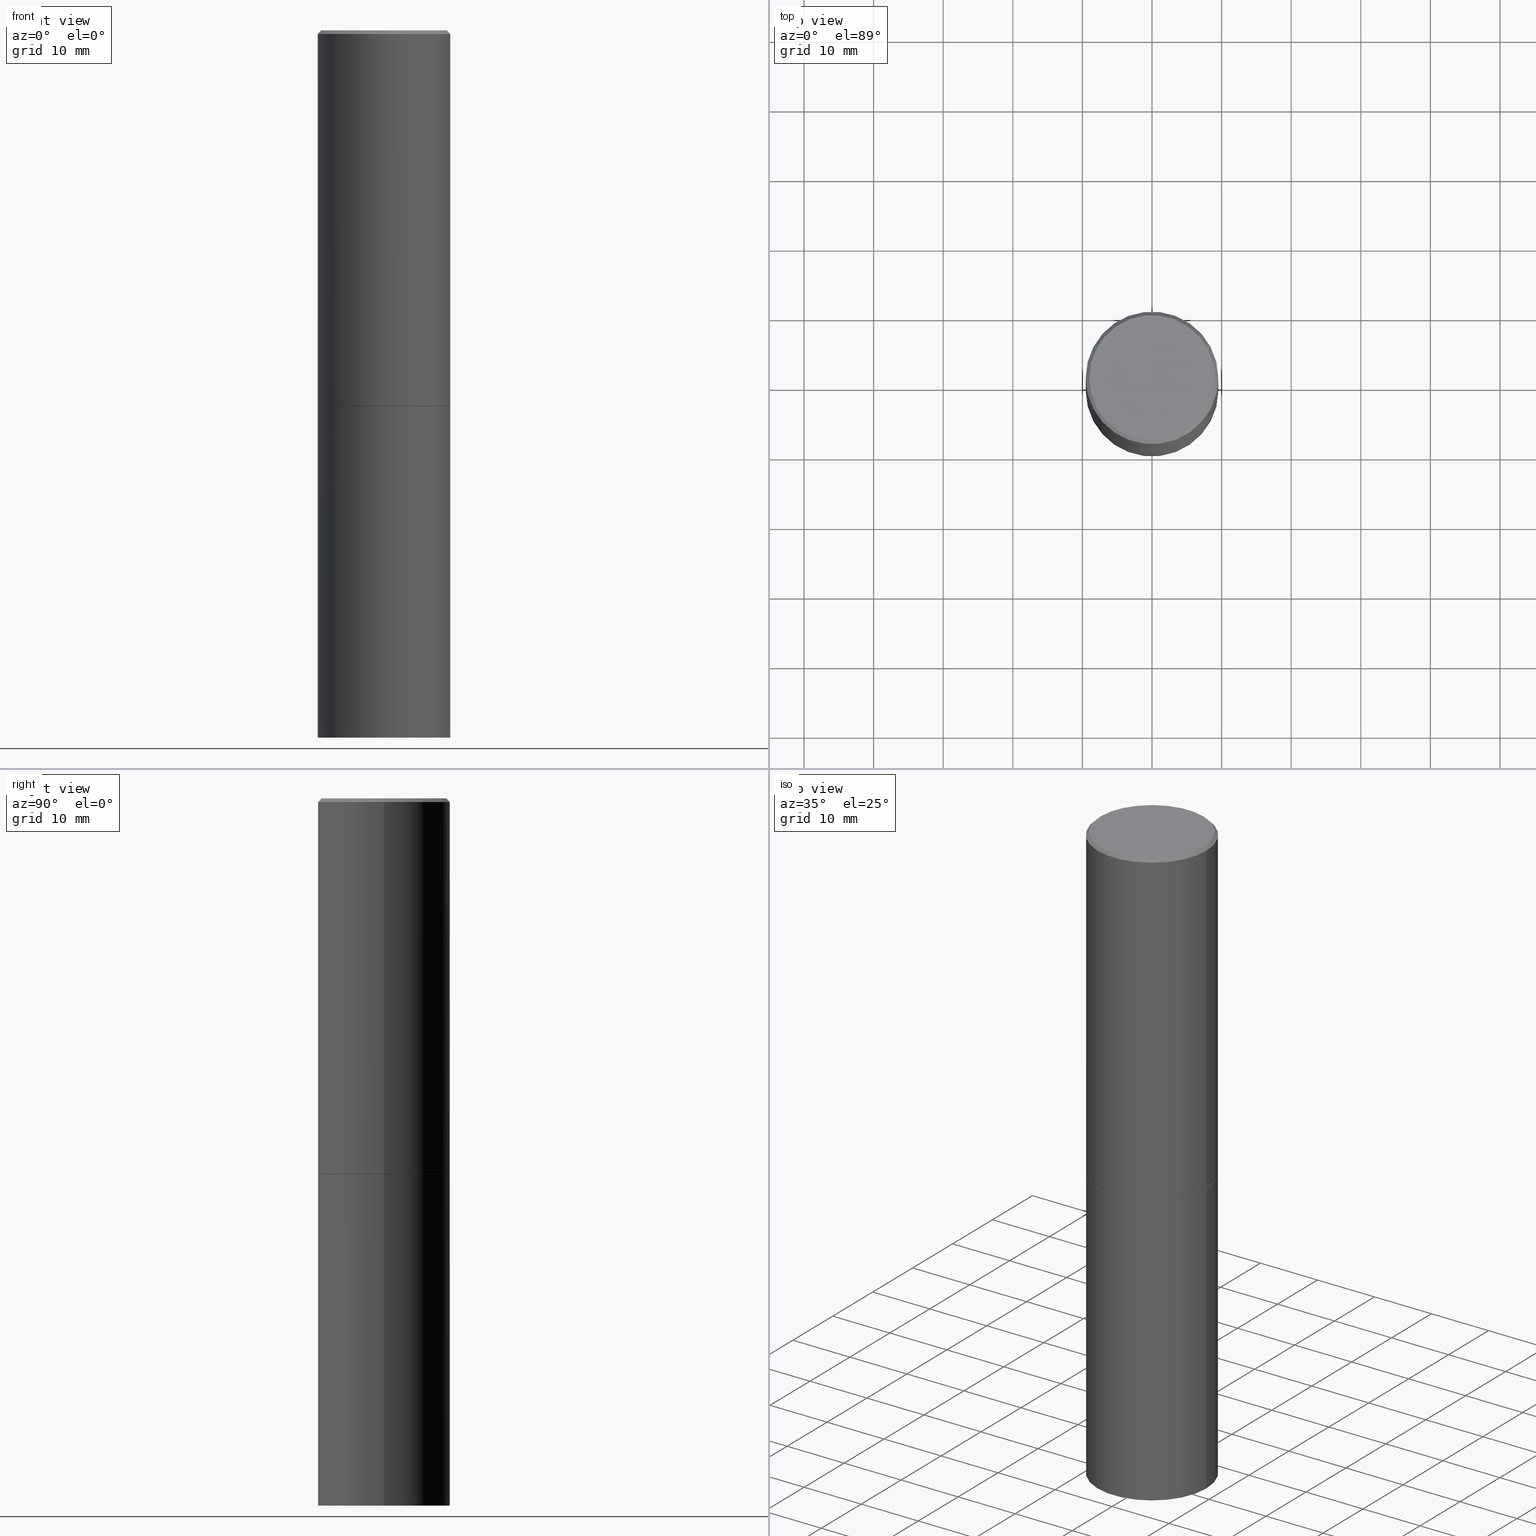
[diagram: canonical four-view strip — front | top / right | iso, engineering-drawing reading convention]
A machine part, canonical four-view strip (front | top / right | iso — engineering-drawing reading convention). The complete STEP part file that produces these views, byte-faithful:
ISO-10303-21;
HEADER;
FILE_DESCRIPTION (( 'STEP AP203' ),
    '1' );
FILE_NAME ('77412.STEP',
    '2024-05-03T15:06:12',
    ( '' ),
    ( '' ),
    'SwSTEP 2.0',
    'SolidWorks 2023',
    '' );
FILE_SCHEMA (( 'CONFIG_CONTROL_DESIGN' ));
ENDSEC;

DATA;
#1 = PERSON_AND_ORGANIZATION ( #120, #33 ) ;
#2 = AXIS2_PLACEMENT_3D ( 'NONE', #307, #163, #24 ) ;
#3 = EDGE_CURVE ( 'NONE', #277, #78, #351, .T. ) ;
#4 = AXIS2_PLACEMENT_3D ( 'NONE', #301, #162, #247 ) ;
#5 = APPROVAL ( #359, 'UNSPECIFIED' ) ;
#6 = VERTEX_POINT ( 'NONE', #250 ) ;
#7 = AXIS2_PLACEMENT_3D ( 'NONE', #219, #330, #323 ) ;
#8 = EDGE_LOOP ( 'NONE', ( #242, #258, #134, #155 ) ) ;
#9 = FACE_OUTER_BOUND ( 'NONE', #338, .T. ) ;
#10 = PRODUCT_RELATED_PRODUCT_CATEGORY ( 'detail', '', ( #317 ) ) ;
#11 = DIRECTION ( 'NONE',  ( 1.000000000000000000, -6.982962677686268288E-15, 0.000000000000000000 ) ) ;
#12 = EDGE_CURVE ( 'NONE', #146, #67, #342, .T. ) ;
#13 = DIRECTION ( 'NONE',  ( 1.000000000000000000, -6.982962677686268288E-15, 0.000000000000000000 ) ) ;
#14 = DIRECTION ( 'NONE',  ( 1.000000000000000000, -6.982962677686266711E-15, 0.000000000000000000 ) ) ;
#15 = ORIENTED_EDGE ( 'NONE', *, *, #310, .T. ) ;
#16 = APPROVAL_PERSON_ORGANIZATION ( #244, #5, #238 ) ;
#17 = FACE_OUTER_BOUND ( 'NONE', #34, .T. ) ;
#18 = CARTESIAN_POINT ( 'NONE',  ( 0.3749999999999998335, -2.642516375941186451E-15, -0.02000000000000009062 ) ) ;
#19 = DATE_AND_TIME ( #21, #150 ) ;
#20 = EDGE_LOOP ( 'NONE', ( #125, #137, #106, #194 ) ) ;
#21 = CALENDAR_DATE ( 2024, 3, 5 ) ;
#22 = AXIS2_PLACEMENT_3D ( 'NONE', #109, #144, #254 ) ;
#23 = SECURITY_CLASSIFICATION ( '', '', #365 ) ;
#24 = DIRECTION ( 'NONE',  ( 1.000000000000000000, -6.982962677686265922E-15, 0.000000000000000000 ) ) ;
#25 = CIRCLE ( 'NONE', #337, 0.3750000000000000555 ) ;
#26 = FACE_OUTER_BOUND ( 'NONE', #290, .T. ) ;
#27 = PLANE ( 'NONE',  #59 ) ;
#28 = AXIS2_PLACEMENT_3D ( 'NONE', #41, #126, #237 ) ;
#29 = APPROVAL_DATE_TIME ( #226, #212 ) ;
#30 = SHAPE_DEFINITION_REPRESENTATION ( #206, #287 ) ;
#31 = UNCERTAINTY_MEASURE_WITH_UNIT (LENGTH_MEASURE( 1.000000000000000082E-05 ), #182, 'distance_accuracy_value', 'NONE');
#32 = CIRCLE ( 'NONE', #22, 0.3750000000000000555 ) ;
#33 = ORGANIZATION ( 'UNSPECIFIED', 'UNSPECIFIED', '' ) ;
#34 = EDGE_LOOP ( 'NONE', ( #281, #49, #36, #183 ) ) ;
#35 = EDGE_CURVE ( 'NONE', #6, #231, #32, .T. ) ;
#36 = ORIENTED_EDGE ( 'NONE', *, *, #177, .F. ) ;
#37 = LOCAL_TIME ( 11, 6, 12.00000000000000000, #145 ) ;
#38 =( NAMED_UNIT ( * ) SI_UNIT ( $, .STERADIAN. ) SOLID_ANGLE_UNIT ( ) );
#39 = CARTESIAN_POINT ( 'NONE',  ( -0.3749999999999998335, 2.548781377355485141E-15, -0.02000000000000009062 ) ) ;
#40 = EDGE_CURVE ( 'NONE', #231, #6, #345, .T. ) ;
#41 = CARTESIAN_POINT ( 'NONE',  ( 4.890937612370295054E-31, -6.982962677686322424E-17, -0.02000000000000009062 ) ) ;
#42 = MECHANICAL_CONTEXT ( 'NONE', #263, 'mechanical' ) ;
#43 = CARTESIAN_POINT ( 'NONE',  ( 0.3739999999999999991, -1.003102588649634605E-14, -2.124999999999999556 ) ) ;
#44 = APPLICATION_PROTOCOL_DEFINITION ( 'international standard', 'config_control_design', 1994, #263 ) ;
#45 = EDGE_CURVE ( 'NONE', #268, #289, #117, .T. ) ;
#46 = DIRECTION ( 'NONE',  ( 1.000000000000000000, -6.982962677686268288E-15, 0.000000000000000000 ) ) ;
#47 = EDGE_LOOP ( 'NONE', ( #112, #357 ) ) ;
#48 = DATE_AND_TIME ( #96, #180 ) ;
#49 = ORIENTED_EDGE ( 'NONE', *, *, #45, .T. ) ;
#50 = LINE ( 'NONE', #164, #158 ) ;
#51 = CARTESIAN_POINT ( 'NONE',  ( 0.3750000000000000555, -1.003800884917403364E-14, -2.125000000000000000 ) ) ;
#52 = AXIS2_PLACEMENT_3D ( 'NONE', #232, #86, #148 ) ;
#53 = CIRCLE ( 'NONE', #56, 0.3750000000000001665 ) ;
#54 = DIRECTION ( 'NONE',  ( 2.445468806185136597E-29, -3.491481338843145583E-15, -1.000000000000000000 ) ) ;
#55 = ADVANCED_FACE ( 'NONE', ( #243 ), #27, .F. ) ;
#56 = AXIS2_PLACEMENT_3D ( 'NONE', #309, #320, #89 ) ;
#57 = ADVANCED_FACE ( 'NONE', ( #17 ), #65, .T. ) ;
#58 = ORIENTED_EDGE ( 'NONE', *, *, #344, .T. ) ;
#59 = AXIS2_PLACEMENT_3D ( 'NONE', #76, #366, #202 ) ;
#60 = AXIS2_PLACEMENT_3D ( 'NONE', #92, #300, #99 ) ;
#61 = ORIENTED_EDGE ( 'NONE', *, *, #35, .F. ) ;
#62 = EDGE_LOOP ( 'NONE', ( #70, #324, #328, #83 ) ) ;
#63 = CARTESIAN_POINT ( 'NONE',  ( 0.3750000000000000555, -1.658453635950493392E-14, -4.000000000000000000 ) ) ;
#64 =( LENGTH_UNIT ( ) NAMED_UNIT ( * ) SI_UNIT ( $, .METRE. ) );
#65 = CONICAL_SURFACE ( 'NONE', #282, 0.3739999999999999991, 0.7853981633976190313 ) ;
#66 = APPROVAL_PERSON_ORGANIZATION ( #132, #212, #241 ) ;
#67 = VERTEX_POINT ( 'NONE', #167 ) ;
#68 = CYLINDRICAL_SURFACE ( 'NONE', #224, 0.3750000000000000555 ) ;
#69 = LINE ( 'NONE', #186, #142 ) ;
#70 = ORIENTED_EDGE ( 'NONE', *, *, #196, .F. ) ;
#71 = DIRECTION ( 'NONE',  ( -2.445468806185136597E-29, 3.491481338843145583E-15, 1.000000000000000000 ) ) ;
#72 = CARTESIAN_POINT ( 'NONE',  ( 2.618611004132402081E-15, 0.3749999999999925615, -2.125000000000001332 ) ) ;
#73 = CYLINDRICAL_SURFACE ( 'NONE', #315, 0.3749999999999999445 ) ;
#74 = CARTESIAN_POINT ( 'NONE',  ( -0.3749999999999998335, 2.548781377355485141E-15, -0.02000000000000009062 ) ) ;
#75 = DIRECTION ( 'NONE',  ( 2.445468806185136597E-29, -3.491481338843145583E-15, -1.000000000000000000 ) ) ;
#76 = CARTESIAN_POINT ( 'NONE',  ( 5.196621213143415268E-29, -7.419397845041683624E-15, -2.125000000000000000 ) ) ;
#77 = CARTESIAN_POINT ( 'NONE',  ( 5.196621213143414147E-29, -7.419397845041682046E-15, -2.124999999999999556 ) ) ;
#78 = VERTEX_POINT ( 'NONE', #280 ) ;
#79 = DATE_AND_TIME ( #279, #174 ) ;
#80 = ADVANCED_FACE ( 'NONE', ( #130 ), #270, .T. ) ;
#81 = AXIS2_PLACEMENT_3D ( 'NONE', #353, #333, #11 ) ;
#82 = MANIFOLD_SOLID_BREP ( 'Body-Move/Copy2[2]', #173 ) ;
#83 = ORIENTED_EDGE ( 'NONE', *, *, #3, .T. ) ;
#84 = CC_DESIGN_PERSON_AND_ORGANIZATION_ASSIGNMENT ( #364, #335, ( #214 ) ) ;
#85 = LINE ( 'NONE', #74, #248 ) ;
#86 = DIRECTION ( 'NONE',  ( -2.445468806185136597E-29, 3.491481338843145583E-15, 1.000000000000000000 ) ) ;
#87 = CARTESIAN_POINT ( 'NONE',  ( 9.781875224740546387E-29, -1.396592535537258233E-14, -4.000000000000000000 ) ) ;
#88 = ORIENTED_EDGE ( 'NONE', *, *, #147, .T. ) ;
#89 = DIRECTION ( 'NONE',  ( 1.000000000000000000, -6.982962677686264344E-15, 0.000000000000000000 ) ) ;
#90 = ORIENTED_EDGE ( 'NONE', *, *, #114, .F. ) ;
#91 = LINE ( 'NONE', #191, #361 ) ;
#92 = CARTESIAN_POINT ( 'NONE',  ( 9.781875224740546387E-29, -1.396592535537258233E-14, -4.000000000000000000 ) ) ;
#93 = APPROVAL_PERSON_ORGANIZATION ( #116, #97, #113 ) ;
#94 = ORIENTED_EDGE ( 'NONE', *, *, #306, .T. ) ;
#95 = DIRECTION ( 'NONE',  ( 0.7071067811866682540, -2.468850131083521605E-15, 0.7071067811864267805 ) ) ;
#96 = CALENDAR_DATE ( 2024, 3, 5 ) ;
#97 = APPROVAL ( #171, 'UNSPECIFIED' ) ;
#98 = EDGE_LOOP ( 'NONE', ( #288, #225, #350, #295 ) ) ;
#99 = DIRECTION ( 'NONE',  ( 1.000000000000000000, -6.982962677686266711E-15, 0.000000000000000000 ) ) ;
#100 = DIRECTION ( 'NONE',  ( 2.438088387897960049E-29, -3.491481338843145188E-15, -1.000000000000000000 ) ) ;
#101 = COORDINATED_UNIVERSAL_TIME_OFFSET ( 5, 0, .BEHIND. ) ;
#102 = VECTOR ( 'NONE', #95, 39.37007874015748143 ) ;
#103 = AXIS2_PLACEMENT_3D ( 'NONE', #190, #160, #274 ) ;
#104 = FACE_OUTER_BOUND ( 'NONE', #20, .T. ) ;
#105 = ADVANCED_FACE ( 'NONE', ( #340 ), #343, .T. ) ;
#106 = ORIENTED_EDGE ( 'NONE', *, *, #151, .F. ) ;
#107 = DATE_TIME_ROLE ( 'classification_date' ) ;
#108 = CARTESIAN_POINT ( 'NONE',  ( 4.890937612370295054E-31, -6.982962677686322424E-17, -0.02000000000000009062 ) ) ;
#109 = CARTESIAN_POINT ( 'NONE',  ( 5.196621213143415268E-29, -7.419397845041683624E-15, -2.125000000000000000 ) ) ;
#110 = CALENDAR_DATE ( 2024, 3, 5 ) ;
#111 = CC_DESIGN_APPROVAL ( #212, ( #214 ) ) ;
#112 = ORIENTED_EDGE ( 'NONE', *, *, #314, .F. ) ;
#113 = APPROVAL_ROLE ( '' ) ;
#114 = EDGE_CURVE ( 'NONE', #268, #199, #256, .T. ) ;
#115 = CC_DESIGN_DATE_AND_TIME_ASSIGNMENT ( #19, #362, ( #179 ) ) ;
#116 = PERSON_AND_ORGANIZATION ( #120, #33 ) ;
#117 = LINE ( 'NONE', #331, #236 ) ;
#118 = CC_DESIGN_PERSON_AND_ORGANIZATION_ASSIGNMENT ( #297, #276, ( #179 ) ) ;
#119 = AXIS2_PLACEMENT_3D ( 'NONE', #252, #54, #170 ) ;
#120 = PERSON ( 'UNSPECIFIED', 'UNSPECIFIED', 'UNSPECIFIED', ('UNSPECIFIED'), ('UNSPECIFIED'), ('UNSPECIFIED') ) ;
#121 = AXIS2_PLACEMENT_3D ( 'NONE', #326, #71, #189 ) ;
#122 = CC_DESIGN_DATE_AND_TIME_ASSIGNMENT ( #79, #107, ( #23 ) ) ;
#123 = EDGE_LOOP ( 'NONE', ( #299, #152 ) ) ;
#124 = CARTESIAN_POINT ( 'NONE',  ( 0.000000000000000000, 0.000000000000000000, 0.000000000000000000 ) ) ;
#125 = ORIENTED_EDGE ( 'NONE', *, *, #177, .T. ) ;
#126 = DIRECTION ( 'NONE',  ( -2.445468806185136597E-29, 3.491481338843145583E-15, 1.000000000000000000 ) ) ;
#127 = APPLICATION_PROTOCOL_DEFINITION ( 'international standard', 'config_control_design', 1994, #356 ) ;
#128 = AXIS2_PLACEMENT_3D ( 'NONE', #139, #278, #363 ) ;
#129 = AXIS2_PLACEMENT_3D ( 'NONE', #72, #233, #221 ) ;
#130 = FACE_OUTER_BOUND ( 'NONE', #62, .T. ) ;
#131 = DIRECTION ( 'NONE',  ( 0.7071067811865455743, -7.319954787623248157E-15, -0.7071067811865493491 ) ) ;
#132 = PERSON_AND_ORGANIZATION ( #120, #33 ) ;
#133 = EDGE_CURVE ( 'NONE', #67, #277, #85, .T. ) ;
#134 = ORIENTED_EDGE ( 'NONE', *, *, #151, .T. ) ;
#135 = PERSON_AND_ORGANIZATION_ROLE ( 'design_owner' ) ;
#136 = DIRECTION ( 'NONE',  ( -1.000000000000000000, 6.982962677686265922E-15, -4.876176775795935793E-29 ) ) ;
#137 = ORIENTED_EDGE ( 'NONE', *, *, #143, .T. ) ;
#138 = DIRECTION ( 'NONE',  ( 1.000000000000000000, -6.982962677686266711E-15, 4.876231632511990425E-29 ) ) ;
#139 = CARTESIAN_POINT ( 'NONE',  ( -2.087702828670439639E-46, 2.980686340760894400E-32, 8.537024980200822558E-18 ) ) ;
#140 = FACE_OUTER_BOUND ( 'NONE', #8, .T. ) ;
#141 = VERTEX_POINT ( 'NONE', #63 ) ;
#142 = VECTOR ( 'NONE', #294, 39.37007874015748143 ) ;
#143 = EDGE_CURVE ( 'NONE', #289, #277, #91, .T. ) ;
#144 = DIRECTION ( 'NONE',  ( -2.445468806185136597E-29, 3.491481338843145583E-15, 1.000000000000000000 ) ) ;
#145 = COORDINATED_UNIVERSAL_TIME_OFFSET ( 5, 0, .BEHIND. ) ;
#146 = VERTEX_POINT ( 'NONE', #322 ) ;
#147 = EDGE_CURVE ( 'NONE', #261, #78, #69, .T. ) ;
#148 = DIRECTION ( 'NONE',  ( 1.000000000000000000, -6.982962677686265922E-15, 4.876176775795935793E-29 ) ) ;
#149 = CONICAL_SURFACE ( 'NONE', #204, 0.3739999999999999991, 0.7853981633976190313 ) ;
#150 = LOCAL_TIME ( 11, 6, 12.00000000000000000, #157 ) ;
#151 = EDGE_CURVE ( 'NONE', #78, #277, #192, .T. ) ;
#152 = ORIENTED_EDGE ( 'NONE', *, *, #12, .T. ) ;
#153 = APPROVAL_STATUS ( 'not_yet_approved' ) ;
#154 = DIRECTION ( 'NONE',  ( -0.7071067811865455743, 2.468850131082236945E-15, -0.7071067811865493491 ) ) ;
#155 = ORIENTED_EDGE ( 'NONE', *, *, #133, .F. ) ;
#156 = DIRECTION ( 'NONE',  ( -2.445468806185136597E-29, 3.491481338843145583E-15, 1.000000000000000000 ) ) ;
#157 = COORDINATED_UNIVERSAL_TIME_OFFSET ( 5, 0, .BEHIND. ) ;
#158 = VECTOR ( 'NONE', #251, 39.37007874015748143 ) ;
#159 = DIRECTION ( 'NONE',  ( -0.7071067811866682540, 7.493145998870789611E-15, 0.7071067811864267805 ) ) ;
#160 = DIRECTION ( 'NONE',  ( 0.000000000000000000, 0.000000000000000000, 1.000000000000000000 ) ) ;
#161 = EDGE_LOOP ( 'NONE', ( #235, #211 ) ) ;
#162 = DIRECTION ( 'NONE',  ( -2.445468806185136597E-29, 3.491481338843145583E-15, 1.000000000000000000 ) ) ;
#163 = DIRECTION ( 'NONE',  ( -2.445468806185136597E-29, 3.491481338843145583E-15, 1.000000000000000000 ) ) ;
#164 = CARTESIAN_POINT ( 'NONE',  ( -0.3750000000000000555, 2.664535259100376091E-15, -1.844600658845589598E-29 ) ) ;
#165 = VECTOR ( 'NONE', #347, 39.37007874015748143 ) ;
#166 = CC_DESIGN_PERSON_AND_ORGANIZATION_ASSIGNMENT ( #1, #311, ( #214 ) ) ;
#167 = CARTESIAN_POINT ( 'NONE',  ( -0.3549999999999998157, 2.513866563967054675E-15, 8.537024980183364388E-18 ) ) ;
#168 = CARTESIAN_POINT ( 'NONE',  ( 0.000000000000000000, 0.000000000000000000, 0.000000000000000000 ) ) ;
#169 = APPROVAL_DATE_TIME ( #308, #97 ) ;
#170 = DIRECTION ( 'NONE',  ( -1.000000000000000000, 6.982962677686265922E-15, 0.000000000000000000 ) ) ;
#171 = APPROVAL_STATUS ( 'not_yet_approved' ) ;
#172 = CC_DESIGN_SECURITY_CLASSIFICATION ( #23, ( #214 ) ) ;
#173 = CLOSED_SHELL ( 'NONE', ( #57, #220, #234, #80, #210, #207, #55, #346 ) ) ;
#174 = LOCAL_TIME ( 11, 6, 12.00000000000000000, #341 ) ;
#175 = EDGE_CURVE ( 'NONE', #199, #261, #352, .T. ) ;
#176 = ORIENTED_EDGE ( 'NONE', *, *, #143, .F. ) ;
#177 = EDGE_CURVE ( 'NONE', #261, #289, #228, .T. ) ;
#178 = ORIENTED_EDGE ( 'NONE', *, *, #314, .T. ) ;
#179 = PRODUCT_DEFINITION ( 'UNKNOWN', '', #214, #184 ) ;
#180 = LOCAL_TIME ( 11, 6, 12.00000000000000000, #101 ) ;
#181 = DIRECTION ( 'NONE',  ( -2.445468806185136877E-29, 3.491481338843145188E-15, 1.000000000000000000 ) ) ;
#182 =( CONVERSION_BASED_UNIT ( 'INCH', #187 ) LENGTH_UNIT ( ) NAMED_UNIT ( #246 ) );
#183 = ORIENTED_EDGE ( 'NONE', *, *, #175, .F. ) ;
#184 = DESIGN_CONTEXT ( 'detailed design', #356, 'design' ) ;
#185 = DIRECTION ( 'NONE',  ( -2.445468806185136597E-29, 3.491481338843145583E-15, 1.000000000000000000 ) ) ;
#186 = CARTESIAN_POINT ( 'NONE',  ( 0.3749999999999999445, -2.618611004132349622E-15, 1.828566290923475642E-29 ) ) ;
#187 = LENGTH_MEASURE_WITH_UNIT ( LENGTH_MEASURE( 0.02539999999999999897 ), #64 );
#188 = ORIENTED_EDGE ( 'NONE', *, *, #255, .T. ) ;
#189 = DIRECTION ( 'NONE',  ( 1.000000000000000000, -6.982962677686264344E-15, 0.000000000000000000 ) ) ;
#190 = CARTESIAN_POINT ( 'NONE',  ( 0.000000000000000000, 0.000000000000000000, 0.000000000000000000 ) ) ;
#191 = CARTESIAN_POINT ( 'NONE',  ( -0.3749999999999999445, 2.664535259100375303E-15, -1.844600658845589318E-29 ) ) ;
#192 = CIRCLE ( 'NONE', #28, 0.3749999999999998335 ) ;
#193 = CARTESIAN_POINT ( 'NONE',  ( 5.196621213143415268E-29, -7.419397845041683624E-15, -2.125000000000000000 ) ) ;
#194 = ORIENTED_EDGE ( 'NONE', *, *, #147, .F. ) ;
#195 =( NAMED_UNIT ( * ) PLANE_ANGLE_UNIT ( ) SI_UNIT ( $, .RADIAN. ) );
#196 = EDGE_CURVE ( 'NONE', #146, #78, #296, .T. ) ;
#197 = FACE_OUTER_BOUND ( 'NONE', #98, .T. ) ;
#198 = DIRECTION ( 'NONE',  ( 1.000000000000000000, -6.982962677686266711E-15, 4.876176775795935793E-29 ) ) ;
#199 = VERTEX_POINT ( 'NONE', #240 ) ;
#200 = AXIS2_PLACEMENT_3D ( 'NONE', #193, #156, #273 ) ;
#201 =( GEOMETRIC_REPRESENTATION_CONTEXT ( 3 ) GLOBAL_UNCERTAINTY_ASSIGNED_CONTEXT ( ( #31 ) ) GLOBAL_UNIT_ASSIGNED_CONTEXT ( ( #182, #195, #38 ) ) REPRESENTATION_CONTEXT ( 'NONE', 'WORKASPACE' ) );
#202 = DIRECTION ( 'NONE',  ( 1.000000000000000000, -6.982962677686265922E-15, 4.876176775795935793E-29 ) ) ;
#203 = PERSON_AND_ORGANIZATION_ROLE ( 'classification_officer' ) ;
#204 = AXIS2_PLACEMENT_3D ( 'NONE', #77, #329, #222 ) ;
#205 = AXIS2_PLACEMENT_3D ( 'NONE', #325, #269, #138 ) ;
#206 = PRODUCT_DEFINITION_SHAPE ( 'NONE', 'NONE',  #179 ) ;
#207 = ADVANCED_FACE ( 'NONE', ( #197 ), #149, .T. ) ;
#208 = MANIFOLD_SOLID_BREP ( 'Body-Move/Copy2[1]', #223 ) ;
#209 = AXIS2_PLACEMENT_3D ( 'NONE', #108, #75, #336 ) ;
#210 = ADVANCED_FACE ( 'NONE', ( #26 ), #358, .T. ) ;
#211 = ORIENTED_EDGE ( 'NONE', *, *, #35, .T. ) ;
#212 = APPROVAL ( #153, 'UNSPECIFIED' ) ;
#213 = CC_DESIGN_PERSON_AND_ORGANIZATION_ASSIGNMENT ( #304, #135, ( #317 ) ) ;
#214 = PRODUCT_DEFINITION_FORMATION_WITH_SPECIFIED_SOURCE ( 'ANY', '', #317, .NOT_KNOWN. ) ;
#215 = ORIENTED_EDGE ( 'NONE', *, *, #310, .F. ) ;
#216 = DIRECTION ( 'NONE',  ( -2.445468806185136597E-29, 3.491481338843145583E-15, 1.000000000000000000 ) ) ;
#217 = FACE_OUTER_BOUND ( 'NONE', #161, .T. ) ;
#218 = EDGE_LOOP ( 'NONE', ( #348, #58, #15, #61 ) ) ;
#219 = CARTESIAN_POINT ( 'NONE',  ( 2.478951750578623420E-15, 0.3549999999999998157, -1.235207362799215622E-15 ) ) ;
#220 = ADVANCED_FACE ( 'NONE', ( #104 ), #73, .T. ) ;
#221 = DIRECTION ( 'NONE',  ( -1.000000000000000000, 6.982962677686265922E-15, -4.876176775795935793E-29 ) ) ;
#222 = DIRECTION ( 'NONE',  ( 1.000000000000000000, -6.982962677686268288E-15, 0.000000000000000000 ) ) ;
#223 = CLOSED_SHELL ( 'NONE', ( #272, #285, #321, #105 ) ) ;
#224 = AXIS2_PLACEMENT_3D ( 'NONE', #124, #185, #293 ) ;
#225 = ORIENTED_EDGE ( 'NONE', *, *, #114, .T. ) ;
#226 = DATE_AND_TIME ( #264, #313 ) ;
#227 = DIRECTION ( 'NONE',  ( -2.445468806185136597E-29, 3.491481338843145583E-15, 1.000000000000000000 ) ) ;
#228 = CIRCLE ( 'NONE', #121, 0.3750000000000001665 ) ;
#229 = CIRCLE ( 'NONE', #60, 0.3750000000000000555 ) ;
#230 = CARTESIAN_POINT ( 'NONE',  ( 0.3750000000000000555, -2.618611004132350016E-15, 1.828566290923476203E-29 ) ) ;
#231 = VERTEX_POINT ( 'NONE', #51 ) ;
#232 = CARTESIAN_POINT ( 'NONE',  ( 0.000000000000000000, 0.000000000000000000, 0.000000000000000000 ) ) ;
#233 = DIRECTION ( 'NONE',  ( 2.438088387897960049E-29, -3.491481338843145188E-15, -1.000000000000000000 ) ) ;
#234 = ADVANCED_FACE ( 'NONE', ( #140 ), #332, .T. ) ;
#235 = ORIENTED_EDGE ( 'NONE', *, *, #40, .T. ) ;
#236 = VECTOR ( 'NONE', #159, 39.37007874015748143 ) ;
#237 = DIRECTION ( 'NONE',  ( 1.000000000000000000, -6.982962677686265922E-15, 0.000000000000000000 ) ) ;
#238 = APPROVAL_ROLE ( '' ) ;
#239 = LINE ( 'NONE', #230, #165 ) ;
#240 = CARTESIAN_POINT ( 'NONE',  ( 0.3739999999999999991, -1.003102588649634605E-14, -2.124999999999999556 ) ) ;
#241 = APPROVAL_ROLE ( '' ) ;
#242 = ORIENTED_EDGE ( 'NONE', *, *, #12, .F. ) ;
#243 = FACE_OUTER_BOUND ( 'NONE', #265, .T. ) ;
#244 = PERSON_AND_ORGANIZATION ( #120, #33 ) ;
#245 = CARTESIAN_POINT ( 'NONE',  ( -0.3750000000000001110, -1.078332736139473696E-15, -2.123999999999999666 ) ) ;
#246 = DIMENSIONAL_EXPONENTS ( 1.000000000000000000, 0.000000000000000000, 0.000000000000000000, 0.000000000000000000, 0.000000000000000000, 0.000000000000000000, 0.000000000000000000 ) ;
#247 = DIRECTION ( 'NONE',  ( 1.000000000000000000, -6.982962677686266711E-15, 4.876176775795935793E-29 ) ) ;
#248 = VECTOR ( 'NONE', #154, 39.37007874015748854 ) ;
#249 = CC_DESIGN_APPROVAL ( #97, ( #23 ) ) ;
#250 = CARTESIAN_POINT ( 'NONE',  ( -0.3750000000000000555, -8.028126341106757280E-15, -2.125000000000000000 ) ) ;
#251 = DIRECTION ( 'NONE',  ( -2.445468806185136877E-29, 3.491481338843145188E-15, 1.000000000000000000 ) ) ;
#252 = CARTESIAN_POINT ( 'NONE',  ( 4.890937612370295054E-31, -6.982962677686322424E-17, -0.02000000000000009062 ) ) ;
#253 = AXIS2_PLACEMENT_3D ( 'NONE', #259, #216, #13 ) ;
#254 = DIRECTION ( 'NONE',  ( 1.000000000000000000, -6.982962677686266711E-15, 0.000000000000000000 ) ) ;
#255 = EDGE_CURVE ( 'NONE', #289, #261, #53, .T. ) ;
#256 = CIRCLE ( 'NONE', #253, 0.3739999999999999991 ) ;
#257 = AXIS2_PLACEMENT_3D ( 'NONE', #305, #100, #136 ) ;
#258 = ORIENTED_EDGE ( 'NONE', *, *, #196, .T. ) ;
#259 = CARTESIAN_POINT ( 'NONE',  ( 5.196621213143414147E-29, -7.419397845041682046E-15, -2.124999999999999556 ) ) ;
#260 = CIRCLE ( 'NONE', #81, 0.3739999999999999991 ) ;
#261 = VERTEX_POINT ( 'NONE', #291 ) ;
#262 = CARTESIAN_POINT ( 'NONE',  ( -0.3739999999999999991, -4.756669558950685744E-15, -2.124999999999999556 ) ) ;
#263 = APPLICATION_CONTEXT ( 'configuration controlled 3d designs of mechanical parts and assemblies' ) ;
#264 = CALENDAR_DATE ( 2024, 3, 5 ) ;
#265 = EDGE_LOOP ( 'NONE', ( #319, #90 ) ) ;
#266 = PLANE ( 'NONE',  #129 ) ;
#267 = CC_DESIGN_PERSON_AND_ORGANIZATION_ASSIGNMENT ( #334, #203, ( #23 ) ) ;
#268 = VERTEX_POINT ( 'NONE', #262 ) ;
#269 = DIRECTION ( 'NONE',  ( -2.445468806185136597E-29, 3.491481338843145583E-15, 1.000000000000000000 ) ) ;
#270 = CONICAL_SURFACE ( 'NONE', #119, 0.3749999999999998335, 0.7853981633974456145 ) ;
#271 = CC_DESIGN_APPROVAL ( #5, ( #179 ) ) ;
#272 = ADVANCED_FACE ( 'NONE', ( #9 ), #68, .T. ) ;
#273 = DIRECTION ( 'NONE',  ( 1.000000000000000000, -6.982962677686266711E-15, 0.000000000000000000 ) ) ;
#274 = DIRECTION ( 'NONE',  ( 1.000000000000000000, 0.000000000000000000, 0.000000000000000000 ) ) ;
#275 = ORIENTED_EDGE ( 'NONE', *, *, #3, .F. ) ;
#276 = PERSON_AND_ORGANIZATION_ROLE ( 'creator' ) ;
#277 = VERTEX_POINT ( 'NONE', #39 ) ;
#278 = DIRECTION ( 'NONE',  ( -2.445468806185136597E-29, 3.491481338843145583E-15, 1.000000000000000000 ) ) ;
#279 = CALENDAR_DATE ( 2024, 3, 5 ) ;
#280 = CARTESIAN_POINT ( 'NONE',  ( 0.3749999999999998335, -2.642516375941186451E-15, -0.02000000000000009062 ) ) ;
#281 = ORIENTED_EDGE ( 'NONE', *, *, #339, .T. ) ;
#282 = AXIS2_PLACEMENT_3D ( 'NONE', #302, #227, #46 ) ;
#283 = CIRCLE ( 'NONE', #205, 0.3549999999999998157 ) ;
#284 = EDGE_CURVE ( 'NONE', #67, #146, #283, .T. ) ;
#285 = ADVANCED_FACE ( 'NONE', ( #355 ), #298, .T. ) ;
#286 = CARTESIAN_POINT ( 'NONE',  ( -0.3750000000000000555, -8.028126341106757280E-15, -4.000000000000000000 ) ) ;
#287 = ADVANCED_BREP_SHAPE_REPRESENTATION ( '77412', ( #208, #82, #103 ), #201 ) ;
#288 = ORIENTED_EDGE ( 'NONE', *, *, #45, .F. ) ;
#289 = VERTEX_POINT ( 'NONE', #245 ) ;
#290 = EDGE_LOOP ( 'NONE', ( #176, #188, #88, #275 ) ) ;
#291 = CARTESIAN_POINT ( 'NONE',  ( 0.3750000000000001665, -1.003451736783519063E-14, -2.123999999999999666 ) ) ;
#292 = PLANE ( 'NONE',  #7 ) ;
#293 = DIRECTION ( 'NONE',  ( 1.000000000000000000, -6.982962677686265922E-15, 4.876176775795935793E-29 ) ) ;
#294 = DIRECTION ( 'NONE',  ( -2.445468806185136877E-29, 3.491481338843145188E-15, 1.000000000000000000 ) ) ;
#295 = ORIENTED_EDGE ( 'NONE', *, *, #255, .F. ) ;
#296 = LINE ( 'NONE', #18, #312 ) ;
#297 = PERSON_AND_ORGANIZATION ( #120, #33 ) ;
#298 = PLANE ( 'NONE',  #257 ) ;
#299 = ORIENTED_EDGE ( 'NONE', *, *, #284, .T. ) ;
#300 = DIRECTION ( 'NONE',  ( -2.445468806185136597E-29, 3.491481338843145583E-15, 1.000000000000000000 ) ) ;
#301 = CARTESIAN_POINT ( 'NONE',  ( 0.000000000000000000, 0.000000000000000000, 0.000000000000000000 ) ) ;
#302 = CARTESIAN_POINT ( 'NONE',  ( 5.196621213143414147E-29, -7.419397845041682046E-15, -2.124999999999999556 ) ) ;
#303 = ORIENTED_EDGE ( 'NONE', *, *, #40, .F. ) ;
#304 = PERSON_AND_ORGANIZATION ( #120, #33 ) ;
#305 = CARTESIAN_POINT ( 'NONE',  ( 2.618611004132448230E-15, 0.3749999999999861222, -4.000000000000000888 ) ) ;
#306 = EDGE_CURVE ( 'NONE', #318, #6, #50, .T. ) ;
#307 = CARTESIAN_POINT ( 'NONE',  ( 4.890937612370295054E-31, -6.982962677686322424E-17, -0.02000000000000009062 ) ) ;
#308 = DATE_AND_TIME ( #110, #37 ) ;
#309 = CARTESIAN_POINT ( 'NONE',  ( 5.194175744337229665E-29, -7.415906363702840616E-15, -2.123999999999999666 ) ) ;
#310 = EDGE_CURVE ( 'NONE', #141, #231, #239, .T. ) ;
#311 = PERSON_AND_ORGANIZATION_ROLE ( 'creator' ) ;
#312 = VECTOR ( 'NONE', #131, 39.37007874015748854 ) ;
#313 = LOCAL_TIME ( 11, 6, 12.00000000000000000, #354 ) ;
#314 = EDGE_CURVE ( 'NONE', #141, #318, #25, .T. ) ;
#315 = AXIS2_PLACEMENT_3D ( 'NONE', #168, #360, #198 ) ;
#316 = DIRECTION ( 'NONE',  ( -2.445468806185136597E-29, 3.491481338843145583E-15, 1.000000000000000000 ) ) ;
#317 = PRODUCT ( '77412', '77412', '', ( #42 ) ) ;
#318 = VERTEX_POINT ( 'NONE', #286 ) ;
#319 = ORIENTED_EDGE ( 'NONE', *, *, #339, .F. ) ;
#320 = DIRECTION ( 'NONE',  ( -2.445468806185136597E-29, 3.491481338843145583E-15, 1.000000000000000000 ) ) ;
#321 = ADVANCED_FACE ( 'NONE', ( #217 ), #266, .F. ) ;
#322 = CARTESIAN_POINT ( 'NONE',  ( 0.3549999999999998157, -2.538996582575039470E-15, 8.537024980218368550E-18 ) ) ;
#323 = DIRECTION ( 'NONE',  ( -1.000000000000000000, 6.982962677686265922E-15, -4.876176775795935793E-29 ) ) ;
#324 = ORIENTED_EDGE ( 'NONE', *, *, #284, .F. ) ;
#325 = CARTESIAN_POINT ( 'NONE',  ( -2.087702828670439639E-46, 2.980686340760894400E-32, 8.537024980200822558E-18 ) ) ;
#326 = CARTESIAN_POINT ( 'NONE',  ( 5.194175744337229665E-29, -7.415906363702840616E-15, -2.123999999999999666 ) ) ;
#327 = APPROVAL_DATE_TIME ( #48, #5 ) ;
#328 = ORIENTED_EDGE ( 'NONE', *, *, #133, .T. ) ;
#329 = DIRECTION ( 'NONE',  ( -2.445468806185136597E-29, 3.491481338843145583E-15, 1.000000000000000000 ) ) ;
#330 = DIRECTION ( 'NONE',  ( 2.438088387897960049E-29, -3.491481338843145188E-15, -1.000000000000000000 ) ) ;
#331 = CARTESIAN_POINT ( 'NONE',  ( -0.3739999999999999991, -4.761968013298907357E-15, -2.124999999999999556 ) ) ;
#332 = CONICAL_SURFACE ( 'NONE', #209, 0.3749999999999998335, 0.7853981633974456145 ) ;
#333 = DIRECTION ( 'NONE',  ( -2.445468806185136597E-29, 3.491481338843145583E-15, 1.000000000000000000 ) ) ;
#334 = PERSON_AND_ORGANIZATION ( #120, #33 ) ;
#335 = PERSON_AND_ORGANIZATION_ROLE ( 'design_supplier' ) ;
#336 = DIRECTION ( 'NONE',  ( -1.000000000000000000, 6.982962677686265922E-15, 0.000000000000000000 ) ) ;
#337 = AXIS2_PLACEMENT_3D ( 'NONE', #87, #316, #14 ) ;
#338 = EDGE_LOOP ( 'NONE', ( #178, #94, #303, #215 ) ) ;
#339 = EDGE_CURVE ( 'NONE', #199, #268, #260, .T. ) ;
#340 = FACE_OUTER_BOUND ( 'NONE', #218, .T. ) ;
#341 = COORDINATED_UNIVERSAL_TIME_OFFSET ( 5, 0, .BEHIND. ) ;
#342 = CIRCLE ( 'NONE', #128, 0.3549999999999998157 ) ;
#343 = CYLINDRICAL_SURFACE ( 'NONE', #52, 0.3750000000000000555 ) ;
#344 = EDGE_CURVE ( 'NONE', #318, #141, #229, .T. ) ;
#345 = CIRCLE ( 'NONE', #200, 0.3750000000000000555 ) ;
#346 = ADVANCED_FACE ( 'NONE', ( #349 ), #292, .F. ) ;
#347 = DIRECTION ( 'NONE',  ( -2.445468806185136877E-29, 3.491481338843145188E-15, 1.000000000000000000 ) ) ;
#348 = ORIENTED_EDGE ( 'NONE', *, *, #306, .F. ) ;
#349 = FACE_OUTER_BOUND ( 'NONE', #123, .T. ) ;
#350 = ORIENTED_EDGE ( 'NONE', *, *, #175, .T. ) ;
#351 = CIRCLE ( 'NONE', #2, 0.3749999999999998335 ) ;
#352 = LINE ( 'NONE', #43, #102 ) ;
#353 = CARTESIAN_POINT ( 'NONE',  ( 5.196621213143414147E-29, -7.419397845041682046E-15, -2.124999999999999556 ) ) ;
#354 = COORDINATED_UNIVERSAL_TIME_OFFSET ( 5, 0, .BEHIND. ) ;
#355 = FACE_OUTER_BOUND ( 'NONE', #47, .T. ) ;
#356 = APPLICATION_CONTEXT ( 'configuration controlled 3d designs of mechanical parts and assemblies' ) ;
#357 = ORIENTED_EDGE ( 'NONE', *, *, #344, .F. ) ;
#358 = CYLINDRICAL_SURFACE ( 'NONE', #4, 0.3749999999999999445 ) ;
#359 = APPROVAL_STATUS ( 'not_yet_approved' ) ;
#360 = DIRECTION ( 'NONE',  ( -2.445468806185136597E-29, 3.491481338843145583E-15, 1.000000000000000000 ) ) ;
#361 = VECTOR ( 'NONE', #181, 39.37007874015748143 ) ;
#362 = DATE_TIME_ROLE ( 'creation_date' ) ;
#363 = DIRECTION ( 'NONE',  ( 1.000000000000000000, -6.982962677686266711E-15, 4.876231632511990425E-29 ) ) ;
#364 = PERSON_AND_ORGANIZATION ( #120, #33 ) ;
#365 = SECURITY_CLASSIFICATION_LEVEL ( 'unclassified' ) ;
#366 = DIRECTION ( 'NONE',  ( -2.438088387897960049E-29, 3.491481338843145188E-15, 1.000000000000000000 ) ) ;
ENDSEC;
END-ISO-10303-21;
